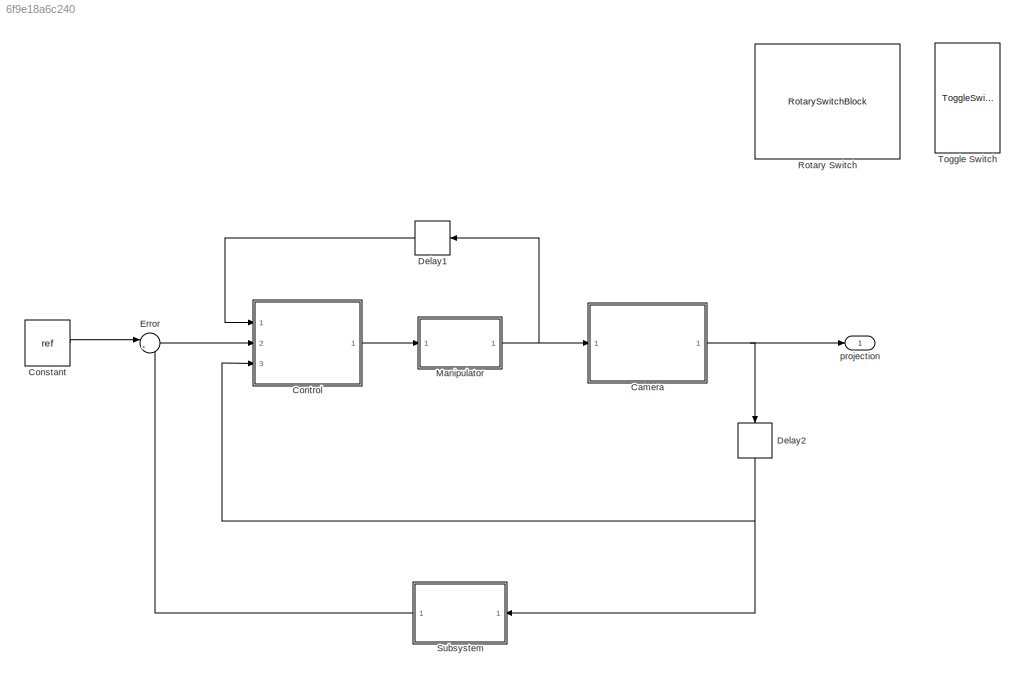
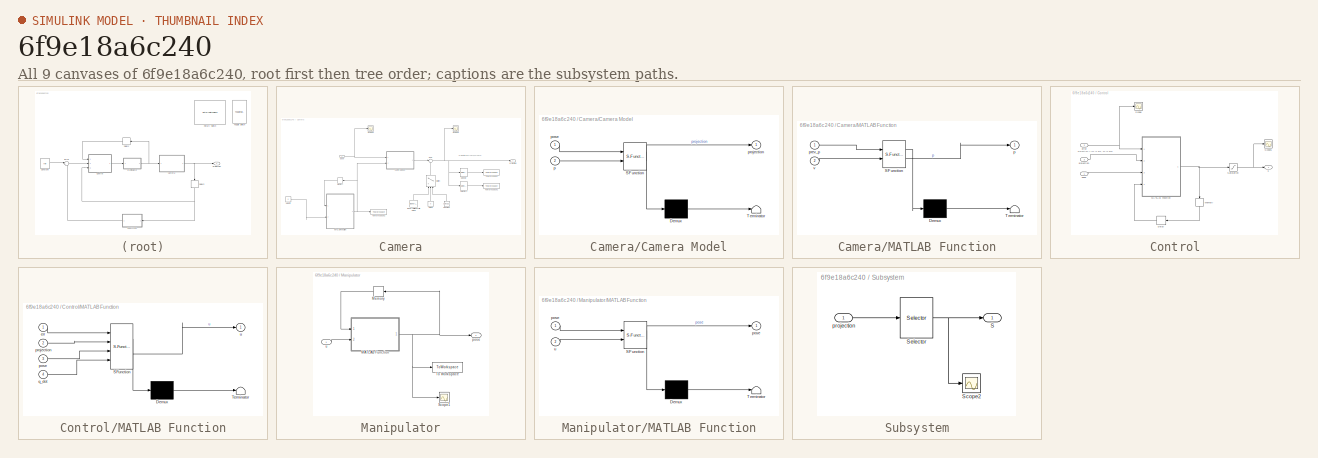
[diagram: thumbnail index - all 9 canvases of the model, root first then tree order]
MODEL slx_6f9e18a6c240
KIND model
CONFIG AbsTol = auto
CONFIG EnableMultiTasking = off
CONFIG FixedStep = auto
CONFIG MaxStep = auto
CONFIG MinStep = auto
CONFIG RelTol = 1e-3
CONFIG SampleTimeConstraint = Unconstrained
CONFIG SolverName = VariableStepAuto
CONFIG StartTime = 0.0
CONFIG StopTime = 10
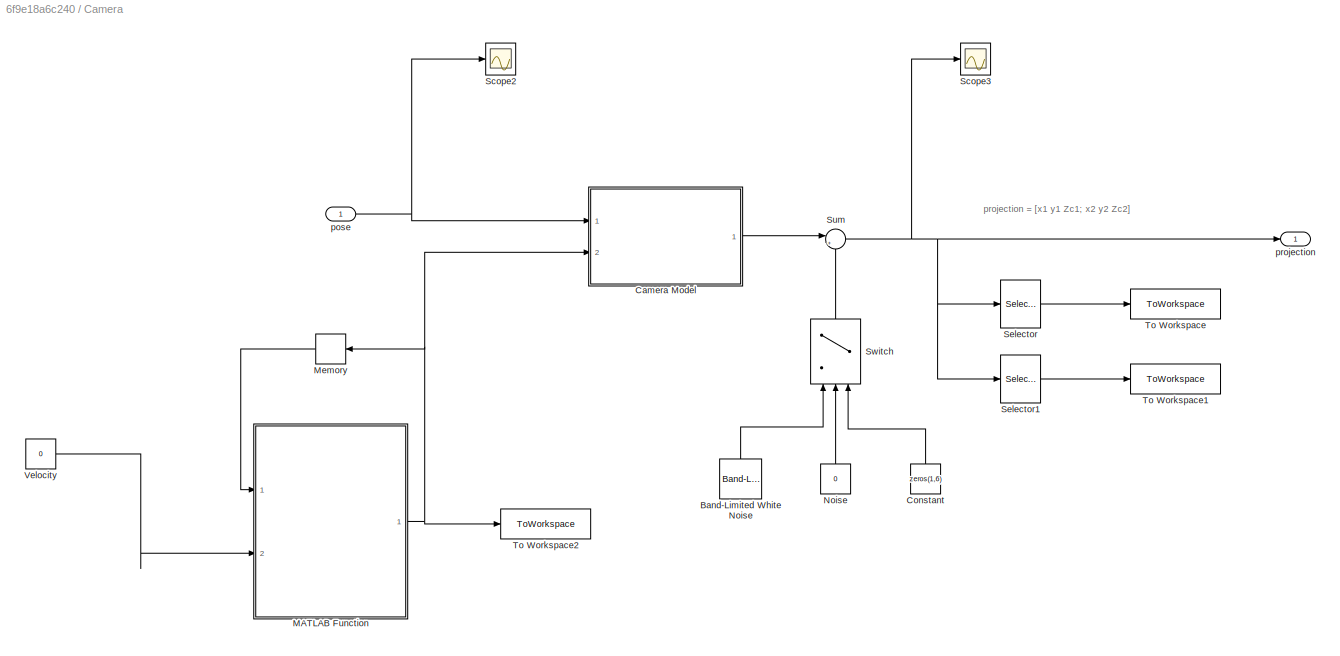
BLOCK [SubSystem] Camera
  Ports = [1, 1]
  RequestExecContextInheritance = off
BLOCK [Reference] Camera/Band-Limited White Noise  REF=simulink/Sources/Band-Limited
White Noise
  NameLocation = right
  Ports = [0, 1]
  SourceBlock = simulink/Sources/Band-Limited\nWhite Noise
  SourceProductBaseCode = SL
  SourceType = Band-Limited White Noise.
BLOCK [SubSystem] Camera/Camera Model
  ErrorFcn = Stateflow.Translate.translate
  PermitHierarchicalResolution = ExplicitOnly
  Ports = [2, 1]
  RequestExecContextInheritance = off
  SFBlockType = MATLAB Function
  TreatAsAtomicUnit = on
BLOCK [Demux] Camera/Camera Model/ Demux 
  Outputs = 1
  Ports = [1, 1]
BLOCK [S-Function] Camera/Camera Model/ SFunction 
  EnableBusSupport = on
  FunctionName = sf_sfun
  Parameters = O,f
  PortCounts = [2 2]
  Ports = [2, 2]
  SFcnIsStateOwnerBlock = off
  SFunctionDeploymentMode = off
  Tag = Stateflow S-Function 2
BLOCK [Terminator] Camera/Camera Model/ Terminator 
BLOCK [Inport] Camera/Camera Model/p
  Port = 2
BLOCK [Inport] Camera/Camera Model/pose
BLOCK [Outport] Camera/Camera Model/projection
BLOCK [Constant] Camera/Constant
  NameLocation = right
  Value = zeros(1,6)
BLOCK [SubSystem] Camera/MATLAB Function
  ErrorFcn = Stateflow.Translate.translate
  PermitHierarchicalResolution = ExplicitOnly
  Ports = [2, 1]
  RequestExecContextInheritance = off
  SFBlockType = MATLAB Function
  SystemSampleTime = dT
  TreatAsAtomicUnit = on
BLOCK [Demux] Camera/MATLAB Function/ Demux 
  Outputs = 1
  Ports = [1, 1]
BLOCK [S-Function] Camera/MATLAB Function/ SFunction 
  EnableBusSupport = on
  FunctionName = sf_sfun
  Parameters = dT
  PortCounts = [2 2]
  Ports = [2, 2]
  SFcnIsStateOwnerBlock = off
  SFunctionDeploymentMode = off
  Tag = Stateflow S-Function 4
BLOCK [Terminator] Camera/MATLAB Function/ Terminator 
BLOCK [Outport] Camera/MATLAB Function/p
BLOCK [Inport] Camera/MATLAB Function/prev_p
BLOCK [Inport] Camera/MATLAB Function/v
  Port = 2
BLOCK [Memory] Camera/Memory
  InitialCondition = [p1; p2]
  NameLocation = top
BLOCK [Constant] Camera/Noise
  NameLocation = right
  Value = 0
BLOCK [Scope] Camera/Scope2
  Floating = off
  NumInputPorts = 1
  Ports = [1]
  ScopeSpecificationString = Simulink.scopes.TimeScopeBlockCfg('CurrentConfiguration', extmgr.ConfigurationSet(extmgr.Configuration('Core','General UI',true),extmgr.Configuration('Core','Source UI',true),extmgr.Configuration('Sources','WiredSimulink',true,'DataLoggingVariableName','ScopeData3'),extmgr.Configuration('Visuals','Time Domain',true,'SerializedDisplays',{struct('MinYLimReal','-1.12077','MaxYLimReal','2.54863','YLab...<+1410ch>
BLOCK [Scope] Camera/Scope3
  Floating = off
  NumInputPorts = 1
  Ports = [1]
  ScopeSpecificationString = Simulink.scopes.TimeScopeBlockCfg('CurrentConfiguration', extmgr.ConfigurationSet(extmgr.Configuration('Core','General UI',true),extmgr.Configuration('Core','Source UI',true),extmgr.Configuration('Sources','WiredSimulink',true,'DataLoggingVariableName','ScopeData3'),extmgr.Configuration('Visuals','Time Domain',true,'SerializedDisplays',{struct('MinYLimReal','-0.63244','MaxYLimReal','3.15932','YLab...<+1568ch>
BLOCK [Selector] Camera/Selector
  IndexOptions = Index vector (dialog)
  Indices = [1 2]
  InputPortWidth = 6
  OutputSizes = 1
  Ports = [1, 1]
BLOCK [Selector] Camera/Selector1
  IndexOptions = Index vector (dialog)
  Indices = [4 5]
  InputPortWidth = 6
  OutputSizes = 1
  Ports = [1, 1]
BLOCK [Sum] Camera/Sum
  Inputs = |++
  Ports = [2, 1]
BLOCK [Switch] Camera/Switch
  Criteria = u2 > Threshold
  InputSameDT = off
  NameLocation = right
  SaturateOnIntegerOverflow = off
BLOCK [ToWorkspace] Camera/To Workspace
  FixptAsFi = on
  MaxDataPoints = inf
  Ports = [1]
  SampleTime = 0.1
  VariableName = proj1
BLOCK [ToWorkspace] Camera/To Workspace1
  FixptAsFi = on
  MaxDataPoints = inf
  Ports = [1]
  SampleTime = 0.1
  VariableName = proj2
BLOCK [ToWorkspace] Camera/To Workspace2
  FixptAsFi = on
  MaxDataPoints = inf
  Ports = [1]
  SampleTime = 0.1
  VariableName = p
BLOCK [Constant] Camera/Velocity
  SampleTime = dT
  Value = 0
BLOCK [Inport] Camera/pose
BLOCK [Outport] Camera/projection
BLOCK [Constant] Constant
  SampleTime = -1
  Value = ref
BLOCK [SubSystem] Control
  Ports = [3, 1]
  RequestExecContextInheritance = off
BLOCK [Delay] Control/Delay
  DelayLength = 1
  InputPortMap = u0
  NameLocation = top
  Ports = [1, 1]
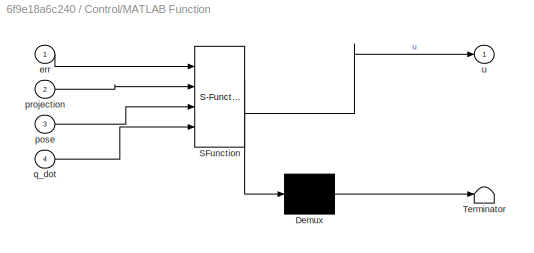
BLOCK [SubSystem] Control/MATLAB Function
  ErrorFcn = Stateflow.Translate.translate
  PermitHierarchicalResolution = ExplicitOnly
  Ports = [4, 1]
  RequestExecContextInheritance = off
  SFBlockType = MATLAB Function
  SystemSampleTime = 1/200
  TreatAsAtomicUnit = on
BLOCK [Demux] Control/MATLAB Function/ Demux 
  Outputs = 1
  Ports = [1, 1]
BLOCK [S-Function] Control/MATLAB Function/ SFunction 
  EnableBusSupport = on
  FunctionName = sf_sfun
  Parameters = Kd,Kp,p1,p2
  PortCounts = [4 2]
  Ports = [4, 2]
  SFcnIsStateOwnerBlock = off
  SFunctionDeploymentMode = off
  Tag = Stateflow S-Function 1
BLOCK [Terminator] Control/MATLAB Function/ Terminator 
BLOCK [Inport] Control/MATLAB Function/err
BLOCK [Inport] Control/MATLAB Function/pose
  Port = 3
BLOCK [Inport] Control/MATLAB Function/projection
  Port = 2
BLOCK [Inport] Control/MATLAB Function/q_dot
  Port = 4
BLOCK [Outport] Control/MATLAB Function/u
BLOCK [Memory] Control/Memory
  InitialCondition = zeros(6,1)
  NameLocation = left
BLOCK [Saturate] Control/Saturation
BLOCK [Scope] Control/Scope
  Floating = off
  NumInputPorts = 1
  Ports = [1]
  ScopeSpecificationString = Simulink.scopes.TimeScopeBlockCfg('CurrentConfiguration', extmgr.ConfigurationSet(extmgr.Configuration('Core','General UI',true),extmgr.Configuration('Core','Source UI',true),extmgr.Configuration('Sources','WiredSimulink',true,'DataLoggingVariableName','ScopeData1'),extmgr.Configuration('Visuals','Time Domain',true,'SerializedDisplays',{struct('MinYLimReal','-0.40572','MaxYLimReal','0.24508','YLab...<+1425ch>
BLOCK [Scope] Control/Scope1
  Floating = off
  NumInputPorts = 1
  Ports = [1]
  ScopeSpecificationString = Simulink.scopes.TimeScopeBlockCfg('CurrentConfiguration', extmgr.ConfigurationSet(extmgr.Configuration('Core','General UI',true),extmgr.Configuration('Core','Source UI',true),extmgr.Configuration('Sources','WiredSimulink',true,'DataLoggingVariableName','ScopeData2'),extmgr.Configuration('Visuals','Time Domain',true,'SerializedDisplays',{struct('MinYLimReal','-0.625','MaxYLimReal','0.625','YLabelRe...<+1463ch>
BLOCK [Inport] Control/error
  Port = 2
BLOCK [Inport] Control/pose
BLOCK [Inport] Control/projection
  Port = 3
BLOCK [Outport] Control/u
BLOCK [Delay] Delay1
  DelayLength = 1
  InputPortMap = u0
  NameLocation = top
  Ports = [1, 1]
BLOCK [Delay] Delay2
  DelayLength = 1
  InputPortMap = u0
  NameLocation = left
  Ports = [1, 1]
BLOCK [Sum] Error
  Inputs = |+-
  Ports = [2, 1]
BLOCK [SubSystem] Manipulator
  Ports = [1, 1]
  RequestExecContextInheritance = off
BLOCK [SubSystem] Manipulator/MATLAB Function
  ErrorFcn = Stateflow.Translate.translate
  PermitHierarchicalResolution = ExplicitOnly
  Ports = [2, 1]
  RequestExecContextInheritance = off
  SFBlockType = MATLAB Function
  SystemSampleTime = 1/200
  TreatAsAtomicUnit = on
BLOCK [Demux] Manipulator/MATLAB Function/ Demux 
  Outputs = 1
  Ports = [1, 1]
BLOCK [S-Function] Manipulator/MATLAB Function/ SFunction 
  EnableBusSupport = on
  FunctionName = sf_sfun
  Parameters = dT
  PortCounts = [2 2]
  Ports = [2, 2]
  SFcnIsStateOwnerBlock = off
  SFunctionDeploymentMode = off
  Tag = Stateflow S-Function 3
BLOCK [Terminator] Manipulator/MATLAB Function/ Terminator 
BLOCK [Outport] Manipulator/MATLAB Function/pose
BLOCK [Inport] Manipulator/MATLAB Function/pose 
BLOCK [Inport] Manipulator/MATLAB Function/u
  Port = 2
BLOCK [Memory] Manipulator/Memory
  InitialCondition = init_pose
  NameLocation = top
BLOCK [Scope] Manipulator/Scope1
  Floating = off
  NumInputPorts = 1
  Ports = [1]
  ScopeSpecificationString = Simulink.scopes.TimeScopeBlockCfg('CurrentConfiguration', extmgr.ConfigurationSet(extmgr.Configuration('Core','General UI',true),extmgr.Configuration('Core','Source UI',true),extmgr.Configuration('Sources','WiredSimulink',true,'DataLoggingVariableName','ScopeData2'),extmgr.Configuration('Visuals','Time Domain',true,'SerializedDisplays',{struct('MinYLimReal','-3.2924','MaxYLimReal','6.84851','YLabe...<+1637ch>
BLOCK [ToWorkspace] Manipulator/To Workspace
  FixptAsFi = on
  MaxDataPoints = inf
  Ports = [1]
  SampleTime = 0.1
  VariableName = pose
BLOCK [Outport] Manipulator/pose
BLOCK [Inport] Manipulator/u
BLOCK [RotarySwitchBlock] Rotary Switch
  LabelPosition = Bottom
BLOCK [SubSystem] Subsystem
  NameLocation = top
  Ports = [1, 1]
  RequestExecContextInheritance = off
BLOCK [Outport] Subsystem/S
BLOCK [Scope] Subsystem/Scope2
  Floating = off
  NumInputPorts = 1
  Ports = [1]
  ScopeSpecificationString = Simulink.scopes.TimeScopeBlockCfg('CurrentConfiguration', extmgr.ConfigurationSet(extmgr.Configuration('Core','General UI',true),extmgr.Configuration('Core','Source UI',true),extmgr.Configuration('Sources','WiredSimulink',true,'DataLoggingVariableName','ScopeData3'),extmgr.Configuration('Visuals','Time Domain',true,'SerializedDisplays',{struct('MinYLimReal','-1.9159','MaxYLimReal','1.40212','YLabe...<+1544ch>
BLOCK [Selector] Subsystem/Selector
  IndexOptions = Index vector (dialog)
  Indices = [1 2 4 5]
  InputPortWidth = 6
  OutputSizes = 1
  Ports = [1, 1]
BLOCK [Inport] Subsystem/projection
BLOCK [ToggleSwitchBlock] Toggle Switch
  LabelPosition = Bottom
BLOCK [Outport] projection
ANNOTATION Camera: projection = [x1 y1 Zc1; x2 y2 Zc2]
ANNOTATION Control: projection = [x1 y1 Zc1; x2 y2 Zc2]
LINE Camera/Band-Limited White Noise:1 -> Camera/Switch:1
LINE Camera/Camera Model:1 -> Camera/Sum:1
LINE Camera/Constant:1 -> Camera/Switch:3
NET Camera/MATLAB Function:1 -> Camera/Camera Model:2, Camera/Memory:1, Camera/To Workspace2:1
LINE Camera/Memory:1 -> Camera/MATLAB Function:1
LINE Camera/Noise:1 -> Camera/Switch:2
LINE Camera/Selector1:1 -> Camera/To Workspace1:1
LINE Camera/Selector:1 -> Camera/To Workspace:1
NET Camera/Sum:1 -> Camera/Scope3:1, Camera/Selector1:1, Camera/Selector:1, Camera/projection:1
LINE Camera/Switch:1 -> Camera/Sum:2
LINE Camera/Velocity:1 -> Camera/MATLAB Function:2
NET Camera/pose:1 -> Camera/Camera Model:1, Camera/Scope2:1
NET Camera:1 -> Delay2:1, projection:1
LINE Constant:1 -> Error:1
LINE Control/Delay:1 -> Control/MATLAB Function:4
NET Control/MATLAB Function:1 -> Control/Memory:1, Control/Saturation:1
LINE Control/Memory:1 -> Control/Delay:1
NET Control/Saturation:1 -> Control/Scope1:1, Control/u:1
NET Control/error:1 -> Control/MATLAB Function:1, Control/Scope:1
LINE Control/pose:1 -> Control/MATLAB Function:3
LINE Control/projection:1 -> Control/MATLAB Function:2
LINE Control:1 -> Manipulator:1
LINE Delay1:1 -> Control:1
NET Delay2:1 -> Control:3, Subsystem:1
LINE Error:1 -> Control:2
NET Manipulator/MATLAB Function:1 -> Manipulator/Memory:1, Manipulator/Scope1:1, Manipulator/To Workspace:1, Manipulator/pose:1
LINE Manipulator/Memory:1 -> Manipulator/MATLAB Function:1
LINE Manipulator/u:1 -> Manipulator/MATLAB Function:2
NET Manipulator:1 -> Camera:1, Delay1:1
NET Subsystem/Selector:1 -> Subsystem/S:1, Subsystem/Scope2:1
LINE Subsystem/projection:1 -> Subsystem/Selector:1
LINE Subsystem:1 -> Error:2
note: NET lines group one-source signal fan-out (src -> all destinations, sorted); 1:1 wires keep LINE
CHART Control/MATLAB Function states=1 transitions=1
  STATE_LABEL 'eML_blk_kernel()'
  STATE_LABEL "SCRIPT:\nfunction u = fcn(err, projection, pose, Kp, p2, Kd, q_dot, p1)\n\n% projection = [x1 y1 Zc1; x2 y2 Zc2]\nx1 = projection(1);         % x projection in the image plane\ny1 = projection(2);         % y projection\nZc1 = projection(3);\nx2 = projection(4);\ny2 = projection(5);\nZc2 = projection(6);\nang = pose(4:6);  % camera's orientation \n\nif Zc1 == 0 || isnan(Zc1)\n    Zc1 = p1(3)- pose(3);\nend\n\nif ...<+1015ch>"
CHART Camera/Camera Model states=1 transitions=1
  STATE_LABEL 'eML_blk_kernel()'
  STATE_LABEL "SCRIPT:\nfunction projection = proj(f, O, pose, p)\n\nd = pose(1:3) - O;    % camera's position in world frame\nang = pose(4:6);      % camera's orientation \np1 = p(1:3);\np2 = p(4:6);\n\n%%\nRx = [1   0       0   ;\n      0 cos(ang(1)) -sin(ang(1));\n      0 sin(ang(1)) cos(ang(1))];\n\nRy = [cos(ang(2)) 0 sin(ang(2)) ;\n       0     1   0    ;\n     -sin(ang(2)) 0 cos(ang(2))];\n \nRz = [cos(ang(3)) -sin(ang(3)...<+611ch>"
CHART Manipulator/MATLAB Function states=1 transitions=1
  STATE_LABEL 'eML_blk_kernel()'
  STATE_LABEL 'SCRIPT:\nfunction pose = fcn(pose, u, dT)\n\nposition = zeros(3, 1);\nangle = zeros(3, 1);\nang = u(4:6);\n\nRx = [1   0       0   ;\n      0 cos(ang(1)) -sin(ang(1));\n      0 sin(ang(1)) cos(ang(1))];\n\nRy = [cos(ang(2)) 0 sin(ang(2)) ;\n       0     1   0    ;\n     -sin(ang(2)) 0 cos(ang(2))];\n \nRz = [cos(ang(3)) -sin(ang(3)) 0;\n      sin(ang(3))  cos(ang(3)) 0;\n       0      0     1];\n\nJ1 = Rz * Ry * Rx;...<+297ch>'
CHART Camera/MATLAB Function states=1 transitions=1
  STATE_LABEL 'eML_blk_kernel()'
  STATE_LABEL 'SCRIPT:\nfunction p = fcn(prev_p ,v, dT)\n\np1 = prev_p(1:3);\np2 = prev_p(4:6);\n\np1 = p1 + [0; v; 0] * dT;\np2 = p2 + [0; v; 0] * dT;\n\np = [p1; p2];\n'
CHART  states=0 transitions=0
CHART  states=0 transitions=0
CHART  states=0 transitions=0
CHART  states=0 transitions=0
